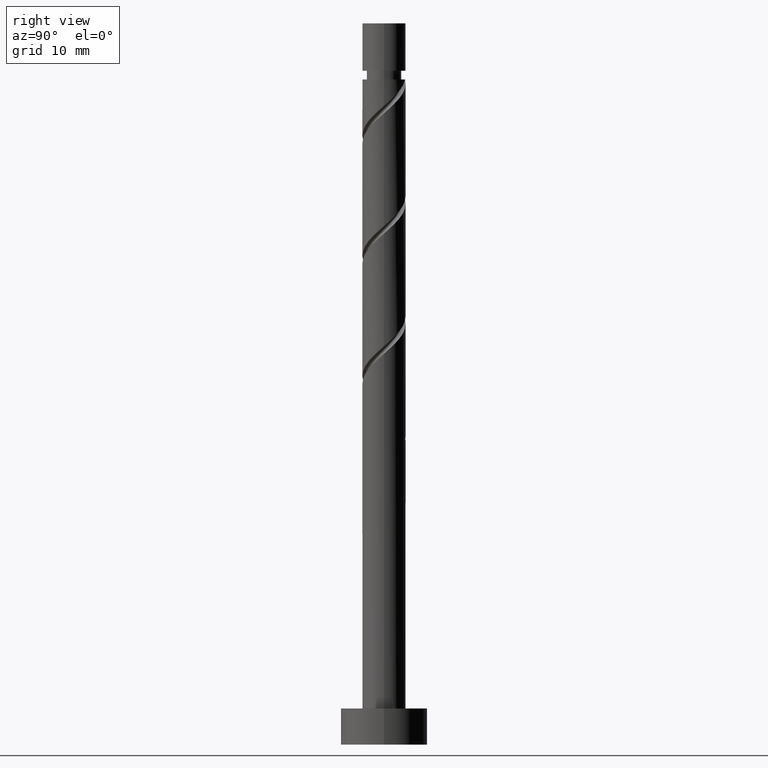
[diagram: clean part render]
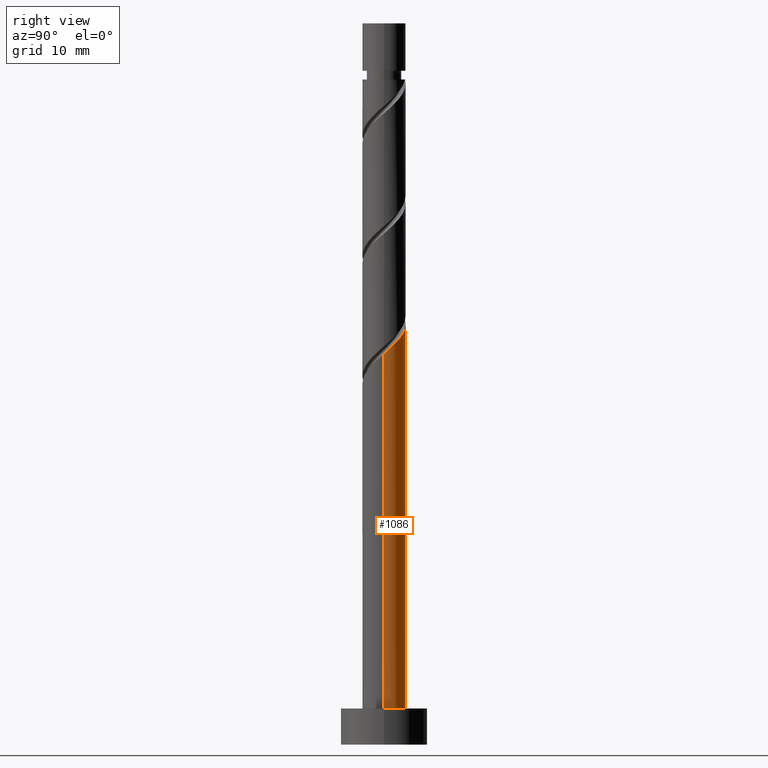
[diagram: same view with one face highlighted and labeled with its STEP entity id]
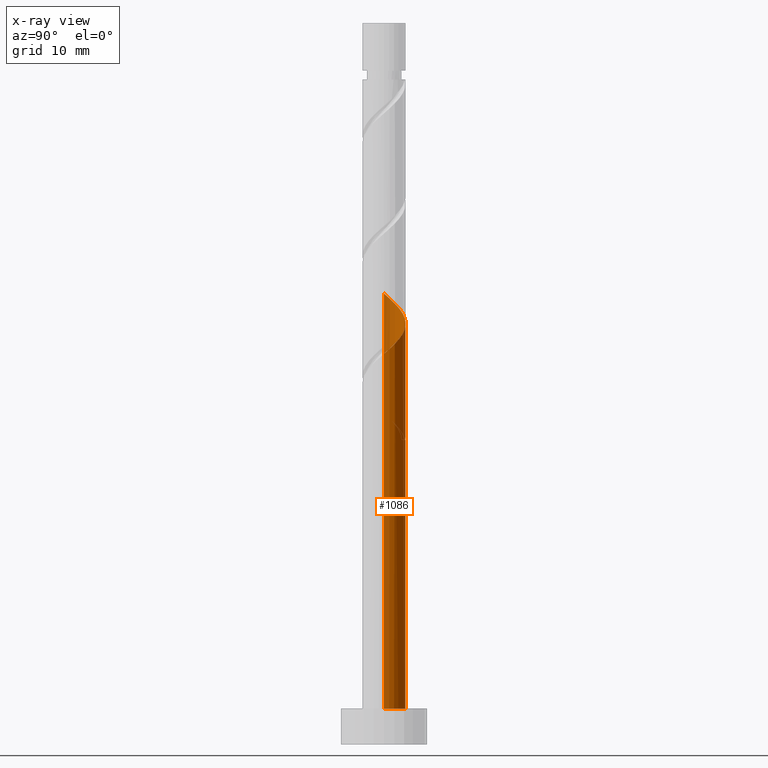
[diagram: x-ray of the same camera — body ghosted, the highlighted face saturated]
A machine part, right view. The second image highlights one B-rep face of the part: STEP entity #1086.
The next image is the same camera in x-ray: the body ghosted, the highlighted face saturated — about 0% of this face is hidden behind the body in this view.
In plain terms, the highlighted cylindrical surface (edge-blend (fillet) strip) has radius 3 mm, axis along (-0, -0, -1).
Its self-contained STEP definition (entity closure, byte-faithful):
#3 = VERTEX_POINT ( 'NONE', #1097 ) ;
#8 = CARTESIAN_POINT ( 'NONE',  ( -1.432472814177193854, 2.635910020589335545, 44.07859348514914188 ) ) ;
#66 = CARTESIAN_POINT ( 'NONE',  ( -2.844610918258239973, 0.9529893618115797826, 61.67118607774173000 ) ) ;
#80 = EDGE_CURVE ( 'NONE', #662, #333, #535, .T. ) ;
#91 = CARTESIAN_POINT ( 'NONE',  ( -2.844610918258239973, 0.9529893618115797826, 45.00451941107505860 ) ) ;
#98 = CARTESIAN_POINT ( 'NONE',  ( -1.566528632831732049, 2.558512857602707413, 59.81933422588987526 ) ) ;
#107 = EDGE_CURVE ( 'NONE', #845, #349, #1144, .T. ) ;
#110 = EDGE_CURVE ( 'NONE', #662, #3, #1041, .T. ) ;
#134 = CARTESIAN_POINT ( 'NONE',  ( 3.000000000000003109, -2.562032762792272016E-15, 54.19588674497519776 ) ) ;
#205 = CARTESIAN_POINT ( 'NONE',  ( -1.115393785546859862, 2.834734121623286640, 42.68970459626026326 ) ) ;
#212 = CARTESIAN_POINT ( 'NONE',  ( 2.985354238944096128, 0.6062020332780334586, 54.72674163329729424 ) ) ;
#214 = ORIENTED_EDGE ( 'NONE', *, *, #107, .F. ) ;
#220 = EDGE_CURVE ( 'NONE', #832, #333, #1032, .T. ) ;
#222 = CARTESIAN_POINT ( 'NONE',  ( -3.000000000000005773, 0.4891631154613709231, 45.43263389927624729 ) ) ;
#236 = ORIENTED_EDGE ( 'NONE', *, *, #643, .T. ) ;
#250 = EDGE_LOOP ( 'NONE', ( #214, #476, #236, #326, #1069, #342, #715, #758 ) ) ;
#270 = VERTEX_POINT ( 'NONE', #1160 ) ;
#273 = DIRECTION ( 'NONE',  ( -0.000000000000000000, -0.000000000000000000, -1.000000000000000000 ) ) ;
#282 = LINE ( 'NONE', #1207, #483 ) ;
#301 = CARTESIAN_POINT ( 'NONE',  ( -2.017663480116604457, 2.282291593582129519, 60.28229718885285138 ) ) ;
#317 = CARTESIAN_POINT ( 'NONE',  ( 0.9676907588274922256, 2.888493626860162422, 57.50451941107505860 ) ) ;
#326 = ORIENTED_EDGE ( 'NONE', *, *, #1072, .F. ) ;
#333 = VERTEX_POINT ( 'NONE', #474 ) ;
#339 = AXIS2_PLACEMENT_3D ( 'NONE', #776, #1359, #1232 ) ;
#340 = CARTESIAN_POINT ( 'NONE',  ( -2.597982042461628449, 1.590694862058331660, 45.46748237403801340 ) ) ;
#342 = ORIENTED_EDGE ( 'NONE', *, *, #80, .T. ) ;
#349 = VERTEX_POINT ( 'NONE', #1397 ) ;
#389 = CIRCLE ( 'NONE', #339, 3.000000000000000444 ) ;
#391 = AXIS2_PLACEMENT_3D ( 'NONE', #1296, #1313, #958 ) ;
#397 = CARTESIAN_POINT ( 'NONE',  ( 0.000000000000000000, 0.000000000000000000, 100.0000000000000000 ) ) ;
#403 = CYLINDRICAL_SURFACE ( 'NONE', #1132, 3.000000000000000444 ) ;
#416 = CARTESIAN_POINT ( 'NONE',  ( 2.597982042461633778, 1.590694862058332548, 55.65266755922321806 ) ) ;
#423 = CARTESIAN_POINT ( 'NONE',  ( -0.07859113898108403828, 3.045265878376722579, 58.43044533700100374 ) ) ;
#444 = CARTESIAN_POINT ( 'NONE',  ( -2.676573181442717608, 1.454571016318389365, 61.20822311477878230 ) ) ;
#466 = CARTESIAN_POINT ( 'NONE',  ( -0.9676907588274885619, 2.888493626860157981, 43.61563052218617287 ) ) ;
#474 = CARTESIAN_POINT ( 'NONE',  ( 0.5969924622639724010, 2.939999999999999947, 42.22674163329728714 ) ) ;
#476 = ORIENTED_EDGE ( 'NONE', *, *, #1141, .T. ) ;
#483 = VECTOR ( 'NONE', #744, 1000.000000000000000 ) ;
#525 = CARTESIAN_POINT ( 'NONE',  ( -2.017663480116604457, 2.282291593582129519, 43.61563052218618708 ) ) ;
#535 = CIRCLE ( 'NONE', #391, 3.000000000000000444 ) ;
#536 = CARTESIAN_POINT ( 'NONE',  ( -2.347118330779659701, 1.868431304950258554, 44.07859348514914188 ) ) ;
#546 = CARTESIAN_POINT ( 'NONE',  ( -0.5969924622639714018, 2.940000000000005276, 58.89340829996395854 ) ) ;
#561 = VECTOR ( 'NONE', #655, 1000.000000000000000 ) ;
#586 = CARTESIAN_POINT ( 'NONE',  ( -2.999001447008923904, 0.07739716298663212868, 46.85637126292692045 ) ) ;
#600 = CARTESIAN_POINT ( 'NONE',  ( -2.247618455994264242, 1.987010638188422940, 45.00451941107506570 ) ) ;
#625 = DIRECTION ( 'NONE',  ( -1.000000000000000000, 0.000000000000000000, 0.000000000000000000 ) ) ;
#632 = VECTOR ( 'NONE', #1119, 1000.000000000000000 ) ;
#643 = EDGE_CURVE ( 'NONE', #1039, #270, #389, .T. ) ;
#655 = DIRECTION ( 'NONE',  ( -0.000000000000000000, -0.000000000000000000, -1.000000000000000000 ) ) ;
#662 = VERTEX_POINT ( 'NONE', #1472 ) ;
#665 = LINE ( 'NONE', #1095, #632 ) ;
#668 = CARTESIAN_POINT ( 'NONE',  ( 2.247618455994267350, 1.987010638188425382, 56.11563052218615866 ) ) ;
#677 = CARTESIAN_POINT ( 'NONE',  ( 1.897254869526903143, 2.383326414318515774, 56.57859348514913478 ) ) ;
#705 = CARTESIAN_POINT ( 'NONE',  ( -0.4445498099232020883, 2.966879752618438282, 43.15266755922321806 ) ) ;
#715 = ORIENTED_EDGE ( 'NONE', *, *, #220, .F. ) ;
#744 = DIRECTION ( 'NONE',  ( -0.000000000000000000, -0.000000000000000000, -1.000000000000000000 ) ) ;
#758 = ORIENTED_EDGE ( 'NONE', *, *, #1378, .F. ) ;
#764 = CARTESIAN_POINT ( 'NONE',  ( -0.5969924622639714018, 2.940000000000005276, 42.22674163329728714 ) ) ;
#776 = CARTESIAN_POINT ( 'NONE',  ( 0.000000000000000000, 0.000000000000000000, 5.000000000000000000 ) ) ;
#780 = CARTESIAN_POINT ( 'NONE',  ( -2.347118330779659701, 1.868431304950258554, 60.74526015181579197 ) ) ;
#821 = CARTESIAN_POINT ( 'NONE',  ( -3.000000000000000888, -1.874840301635173620E-15, 46.92426318828605503 ) ) ;
#832 = VERTEX_POINT ( 'NONE', #821 ) ;
#845 = VERTEX_POINT ( 'NONE', #134 ) ;
#904 = CARTESIAN_POINT ( 'NONE',  ( -1.566528632831732049, 2.558512857602707413, 43.15266755922321096 ) ) ;
#912 = CARTESIAN_POINT ( 'NONE',  ( -3.000000000000000888, -1.874840301635173620E-15, 46.92426318828605503 ) ) ;
#927 = CARTESIAN_POINT ( 'NONE',  ( 0.07859113898108456564, 3.045265878376718138, 42.68970459626023484 ) ) ;
#958 = DIRECTION ( 'NONE',  ( -1.000000000000000000, 0.000000000000000000, 0.000000000000000000 ) ) ;
#985 = CARTESIAN_POINT ( 'NONE',  ( 3.000000000000003997, 0.03870502299605333568, 54.22990411890756235 ) ) ;
#992 = CARTESIAN_POINT ( 'NONE',  ( -3.000000000000003109, 2.614319145706400096E-15, 45.86255341164186916 ) ) ;
#1032 =( BOUNDED_CURVE ( )  B_SPLINE_CURVE ( 2, ( #912, #1153, #586, #1037, #1043, #340, #600, #1167, #8, #466, #705, #927, #1384 ),
 .UNSPECIFIED., .F., .T. ) 
 B_SPLINE_CURVE_WITH_KNOTS ( ( 3, 2, 2, 2, 2, 2, 3 ),
 ( 0.9295248053855289516, 0.9305555555555555802, 0.9444444444444444198, 0.9583333333333333703, 0.9722222222222222099, 0.9861111111111111605, 1.000000000000000000 ),
 .UNSPECIFIED. ) 
 CURVE ( )  GEOMETRIC_REPRESENTATION_ITEM ( )  RATIONAL_B_SPLINE_CURVE ( ( 0.9071930855141192573, 0.9080659294509669799, 0.9090909090909071733, 0.8952797754656418583, 0.9090909090909071733, 0.8952797754656418583, 0.9090909090909071733, 0.8952797754656418583, 0.9090909090909071733, 0.8952797754656418583, 0.9090909090909071733, 0.8952797754656418583, 0.9090909090909071733 ) ) 
 REPRESENTATION_ITEM ( '' )  );
#1037 = CARTESIAN_POINT ( 'NONE',  ( -2.985354238944091243, 0.6062020332780333476, 46.39340829996393012 ) ) ;
#1039 = VERTEX_POINT ( 'NONE', #1065 ) ;
#1041 =( BOUNDED_CURVE ( )  B_SPLINE_CURVE ( 2, ( #764, #205, #904, #525, #536, #1121, #91, #222, #992 ),
 .UNSPECIFIED., .F., .T. ) 
 B_SPLINE_CURVE_WITH_KNOTS ( ( 3, 2, 2, 2, 3 ),
 ( 0.000000000000000000, 0.01388888888888883955, 0.02777777777777779011, 0.04166666666666662966, 0.05452480538552909733 ),
 .UNSPECIFIED. ) 
 CURVE ( )  GEOMETRIC_REPRESENTATION_ITEM ( )  RATIONAL_B_SPLINE_CURVE ( ( 0.9090909090909128354, 0.8952797754656471874, 0.9090909090909128354, 0.8952797754656471874, 0.9090909090909128354, 0.8952797754656471874, 0.9090909090909128354, 0.8963047551055872697, 0.9071930855141251415 ) ) 
 REPRESENTATION_ITEM ( '' )  );
#1043 = CARTESIAN_POINT ( 'NONE',  ( -2.791668140702859180, 1.098448447668183281, 45.93044533700099663 ) ) ;
#1065 = CARTESIAN_POINT ( 'NONE',  ( 3.000000000000000444, 3.673940397442060361E-16, 5.000000000000000000 ) ) ;
#1069 = ORIENTED_EDGE ( 'NONE', *, *, #110, .F. ) ;
#1072 = EDGE_CURVE ( 'NONE', #3, #270, #1434, .T. ) ;
#1079 = CARTESIAN_POINT ( 'NONE',  ( -3.000000000000000444, 0.000000000000000000, 100.0000000000000000 ) ) ;
#1086 = ADVANCED_FACE ( 'NONE', ( #1109 ), #403, .T. ) ;
#1095 = CARTESIAN_POINT ( 'NONE',  ( -3.000000000000000444, 0.000000000000000000, 100.0000000000000000 ) ) ;
#1097 = CARTESIAN_POINT ( 'NONE',  ( -3.000000000000003109, 2.614319145706400096E-15, 45.86255341164186916 ) ) ;
#1105 = CARTESIAN_POINT ( 'NONE',  ( -3.000000000000004441, 0.4891631154613720334, 62.09930056594292580 ) ) ;
#1109 = FACE_OUTER_BOUND ( 'NONE', #250, .T. ) ;
#1113 = CARTESIAN_POINT ( 'NONE',  ( 3.000000000000003109, -2.562032762792272016E-15, 54.19588674497519776 ) ) ;
#1119 = DIRECTION ( 'NONE',  ( -0.000000000000000000, -0.000000000000000000, -1.000000000000000000 ) ) ;
#1121 = CARTESIAN_POINT ( 'NONE',  ( -2.676573181442717608, 1.454571016318389365, 44.54155644811211090 ) ) ;
#1128 = CARTESIAN_POINT ( 'NONE',  ( 2.791668140702863621, 1.098448447668182615, 55.18970459626026326 ) ) ;
#1132 = AXIS2_PLACEMENT_3D ( 'NONE', #397, #273, #625 ) ;
#1141 = EDGE_CURVE ( 'NONE', #845, #1039, #282, .T. ) ;
#1144 =( BOUNDED_CURVE ( )  B_SPLINE_CURVE ( 2, ( #1113, #985, #1249, #212, #1128, #416, #668, #677, #1336, #317, #1453, #423, #546, #1460, #98, #301, #780, #444, #66, #1105, #1235 ),
 .UNSPECIFIED., .F., .T. ) 
 B_SPLINE_CURVE_WITH_KNOTS ( ( 3, 2, 2, 2, 2, 2, 2, 2, 2, 2, 3 ),
 ( 0.1795248053855288406, 0.1805555555555555802, 0.1944444444444444198, 0.2083333333333333703, 0.2222222222222222099, 0.2361111111111111605, 0.2500000000000000000, 0.2638888888888888395, 0.2777777777777777901, 0.2916666666666666297, 0.3045248053855290626 ),
 .UNSPECIFIED. ) 
 CURVE ( )  GEOMETRIC_REPRESENTATION_ITEM ( )  RATIONAL_B_SPLINE_CURVE ( ( 0.9071930855141246974, 0.9080659294509725310, 0.9090909090909128354, 0.8952797754656471874, 0.9090909090909128354, 0.8952797754656471874, 0.9090909090909128354, 0.8952797754656471874, 0.9090909090909128354, 0.8952797754656471874, 0.9090909090909128354, 0.8952797754656471874, 0.9090909090909128354, 0.8952797754656471874, 0.9090909090909128354, 0.8952797754656471874, 0.9090909090909128354, 0.8952797754656471874, 0.9090909090909128354, 0.8963047551055872697, 0.9071930855141251415 ) ) 
 REPRESENTATION_ITEM ( '' )  );
#1153 = CARTESIAN_POINT ( 'NONE',  ( -3.000000000000000000, 0.03870502299605801944, 46.89024581435368333 ) ) ;
#1160 = CARTESIAN_POINT ( 'NONE',  ( -3.000000000000000444, 0.000000000000000000, 5.000000000000000000 ) ) ;
#1167 = CARTESIAN_POINT ( 'NONE',  ( -1.897254869526899368, 2.383326414318513109, 44.54155644811208958 ) ) ;
#1207 = CARTESIAN_POINT ( 'NONE',  ( 3.000000000000000444, 3.673940397442060361E-16, 100.0000000000000000 ) ) ;
#1232 = DIRECTION ( 'NONE',  ( 1.000000000000000000, 0.000000000000000000, 0.000000000000000000 ) ) ;
#1235 = CARTESIAN_POINT ( 'NONE',  ( -3.000000000000003109, 2.614319145706400096E-15, 62.52922007830852635 ) ) ;
#1249 = CARTESIAN_POINT ( 'NONE',  ( 2.999001447008927457, 0.07739716298663182337, 54.26377867033432523 ) ) ;
#1296 = CARTESIAN_POINT ( 'NONE',  ( 0.000000000000000000, 0.000000000000000000, 42.22674163329728714 ) ) ;
#1313 = DIRECTION ( 'NONE',  ( 0.000000000000000000, -0.000000000000000000, -1.000000000000000000 ) ) ;
#1336 = CARTESIAN_POINT ( 'NONE',  ( 1.432472814177197185, 2.635910020589338210, 57.04155644811208958 ) ) ;
#1359 = DIRECTION ( 'NONE',  ( 0.000000000000000000, 0.000000000000000000, 1.000000000000000000 ) ) ;
#1378 = EDGE_CURVE ( 'NONE', #349, #832, #665, .T. ) ;
#1384 = CARTESIAN_POINT ( 'NONE',  ( 0.5969924622639724010, 2.939999999999999947, 42.22674163329728714 ) ) ;
#1397 = CARTESIAN_POINT ( 'NONE',  ( -3.000000000000003109, 2.614319145706400096E-15, 62.52922007830852635 ) ) ;
#1434 = LINE ( 'NONE', #1079, #561 ) ;
#1453 = CARTESIAN_POINT ( 'NONE',  ( 0.4445498099232054190, 2.966879752618441390, 57.96748237403802051 ) ) ;
#1460 = CARTESIAN_POINT ( 'NONE',  ( -1.115393785546859862, 2.834734121623286640, 59.35637126292692045 ) ) ;
#1472 = CARTESIAN_POINT ( 'NONE',  ( -0.5969924622639714018, 2.940000000000005276, 42.22674163329728714 ) ) ;